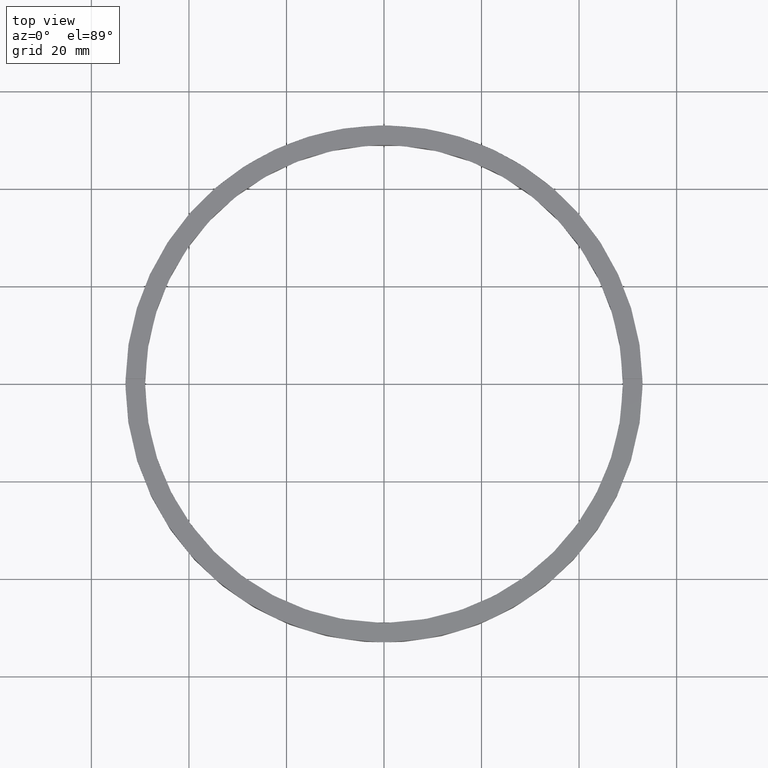
[diagram: clean part render]
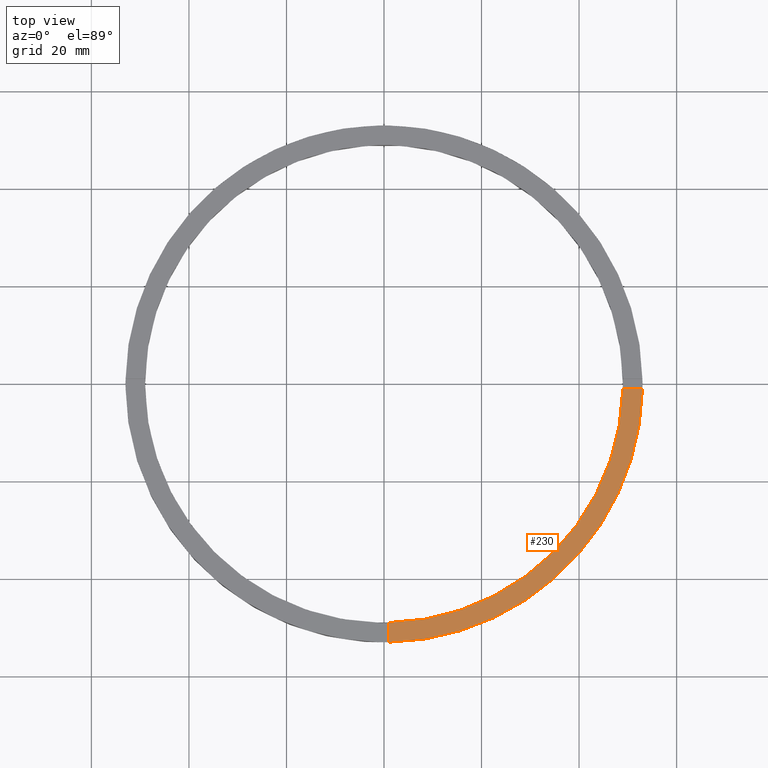
[diagram: same view with one face highlighted and labeled with its STEP entity id]
A machine part, top view. The second image highlights one B-rep face of the part: STEP entity #230.
In plain terms, the highlighted planar face has unit normal (0, 0, 1).
Its self-contained STEP definition (entity closure, byte-faithful):
#11 = DIRECTION ( 'NONE',  ( 0.000000000000000000, 0.000000000000000000, 1.000000000000000000 ) ) ;
#16 = CARTESIAN_POINT ( 'NONE',  ( 43.00000000000000000, -1.000000000000155209, 5.000000000000000000 ) ) ;
#24 = DIRECTION ( 'NONE',  ( 1.000000000000000000, 0.000000000000000000, -0.000000000000000000 ) ) ;
#32 = LINE ( 'NONE', #16, #55 ) ;
#49 = CIRCLE ( 'NONE', #665, 49.00000000000000000 ) ;
#55 = VECTOR ( 'NONE', #201, 1000.000000000000000 ) ;
#65 = DIRECTION ( 'NONE',  ( 1.000000000000000000, 0.000000000000000000, 0.000000000000000000 ) ) ;
#74 = DIRECTION ( 'NONE',  ( 1.000000000000000000, 0.000000000000000000, 0.000000000000000000 ) ) ;
#98 = VECTOR ( 'NONE', #388, 1000.000000000000000 ) ;
#108 = EDGE_CURVE ( 'NONE', #739, #129, #357, .T. ) ;
#115 = ORIENTED_EDGE ( 'NONE', *, *, #298, .F. ) ;
#129 = VERTEX_POINT ( 'NONE', #520 ) ;
#138 = CARTESIAN_POINT ( 'NONE',  ( 0.000000000000000000, 0.000000000000000000, 5.000000000000000000 ) ) ;
#144 = CARTESIAN_POINT ( 'NONE',  ( 0.000000000000000000, 0.000000000000000000, 5.000000000000000000 ) ) ;
#156 = EDGE_CURVE ( 'NONE', #739, #404, #369, .T. ) ;
#201 = DIRECTION ( 'NONE',  ( 1.000000000000000000, 6.505213034913025371E-17, 0.000000000000000000 ) ) ;
#230 = ADVANCED_FACE ( 'NONE', ( #363 ), #329, .T. ) ;
#284 = CARTESIAN_POINT ( 'NONE',  ( 52.99056519796708642, -1.000000000000154543, 5.000000000000000000 ) ) ;
#294 = CARTESIAN_POINT ( 'NONE',  ( 48.98979485566356118, -1.000000000000154765, 5.000000000000000000 ) ) ;
#298 = EDGE_CURVE ( 'NONE', #698, #404, #32, .T. ) ;
#311 = EDGE_CURVE ( 'NONE', #129, #698, #49, .T. ) ;
#315 = AXIS2_PLACEMENT_3D ( 'NONE', #461, #566, #24 ) ;
#329 = PLANE ( 'NONE',  #315 ) ;
#357 = LINE ( 'NONE', #559, #98 ) ;
#363 = FACE_OUTER_BOUND ( 'NONE', #663, .T. ) ;
#369 = CIRCLE ( 'NONE', #631, 53.00000000000000711 ) ;
#375 = DIRECTION ( 'NONE',  ( 0.000000000000000000, 0.000000000000000000, 1.000000000000000000 ) ) ;
#388 = DIRECTION ( 'NONE',  ( -1.301042606982605074E-16, 1.000000000000000000, -0.000000000000000000 ) ) ;
#404 = VERTEX_POINT ( 'NONE', #284 ) ;
#433 = ORIENTED_EDGE ( 'NONE', *, *, #311, .F. ) ;
#461 = CARTESIAN_POINT ( 'NONE',  ( 0.000000000000000000, 0.000000000000000000, 5.000000000000000000 ) ) ;
#520 = CARTESIAN_POINT ( 'NONE',  ( 0.9999999999998432365, -48.98979485566356828, 5.000000000000000000 ) ) ;
#559 = CARTESIAN_POINT ( 'NONE',  ( 0.9999999999998425704, -43.00000000000018474, 5.000000000000000000 ) ) ;
#566 = DIRECTION ( 'NONE',  ( 0.000000000000000000, 0.000000000000000000, 1.000000000000000000 ) ) ;
#603 = CARTESIAN_POINT ( 'NONE',  ( 0.9999999999998439026, -52.99056519796709352, 5.000000000000000000 ) ) ;
#631 = AXIS2_PLACEMENT_3D ( 'NONE', #138, #11, #65 ) ;
#663 = EDGE_LOOP ( 'NONE', ( #115, #433, #668, #678 ) ) ;
#665 = AXIS2_PLACEMENT_3D ( 'NONE', #144, #375, #74 ) ;
#668 = ORIENTED_EDGE ( 'NONE', *, *, #108, .F. ) ;
#678 = ORIENTED_EDGE ( 'NONE', *, *, #156, .T. ) ;
#698 = VERTEX_POINT ( 'NONE', #294 ) ;
#739 = VERTEX_POINT ( 'NONE', #603 ) ;